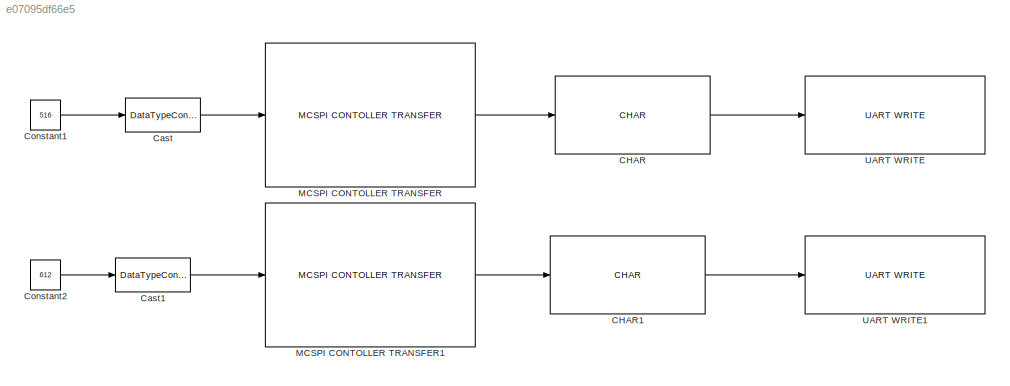
MODEL slx_e07095df66e5
KIND model
CONFIG AbsTol = auto
CONFIG EnableMultiTasking = off
CONFIG FixedStep = auto
CONFIG MaxStep = auto
CONFIG MinStep = auto
CONFIG RelTol = 1e-3
CONFIG SampleTimeConstraint = Unconstrained
CONFIG SolverName = FixedStepAuto
CONFIG StartTime = 0.0
CONFIG StopTime = 10.0
BLOCK [Reference] CHAR  REF=peripheral_library_blocks_am261x/CHAR
  SourceBlock = peripheral_library_blocks_am261x/CHAR
  SourceType = CHAR
BLOCK [Reference] CHAR1  REF=peripheral_library_blocks_am261x/CHAR
  SourceBlock = peripheral_library_blocks_am261x/CHAR
  SourceType = CHAR
BLOCK [DataTypeConversion] Cast
  OutDataTypeStr = uint16
  RndMeth = Floor
  SaturateOnIntegerOverflow = off
BLOCK [DataTypeConversion] Cast1
  OutDataTypeStr = uint16
  RndMeth = Floor
  SaturateOnIntegerOverflow = off
BLOCK [Constant] Constant1
  Value = 516
BLOCK [Constant] Constant2
  Value = 612
BLOCK [Reference] MCSPI CONTOLLER TRANSFER  REF=peripheral_library_blocks_am261x/MCSPI CONTOLLER TRANSFER
  SourceBlock = peripheral_library_blocks_am261x/MCSPI CONTOLLER TRANSFER
  SourceType = MCSPI_CONTROLLER_TRANSFER_AM261X
BLOCK [Reference] MCSPI CONTOLLER TRANSFER1  REF=peripheral_library_blocks_am261x/MCSPI CONTOLLER TRANSFER
  SourceBlock = peripheral_library_blocks_am261x/MCSPI CONTOLLER TRANSFER
  SourceType = MCSPI_CONTROLLER_TRANSFER_AM261X
BLOCK [Reference] UART WRITE  REF=peripheral_library_blocks_am261x/UART WRITE
  SourceBlock = peripheral_library_blocks_am261x/UART WRITE
  SourceType = UART_WRITE_AM261X
BLOCK [Reference] UART WRITE1  REF=peripheral_library_blocks_am261x/UART WRITE
  SourceBlock = peripheral_library_blocks_am261x/UART WRITE
  SourceType = UART_WRITE_AM261X
LINE CHAR1:1 -> UART WRITE1:1
LINE CHAR:1 -> UART WRITE:1
LINE Cast1:1 -> MCSPI CONTOLLER TRANSFER1:1
LINE Cast:1 -> MCSPI CONTOLLER TRANSFER:1
LINE Constant1:1 -> Cast:1
LINE Constant2:1 -> Cast1:1
LINE MCSPI CONTOLLER TRANSFER1:1 -> CHAR1:1
LINE MCSPI CONTOLLER TRANSFER:1 -> CHAR:1
